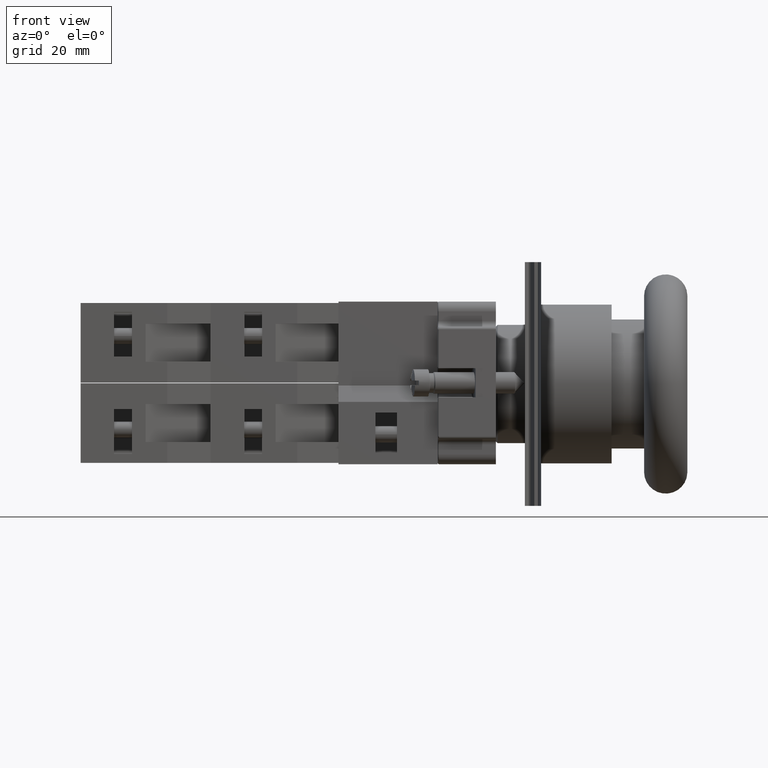
[diagram: clean part render]
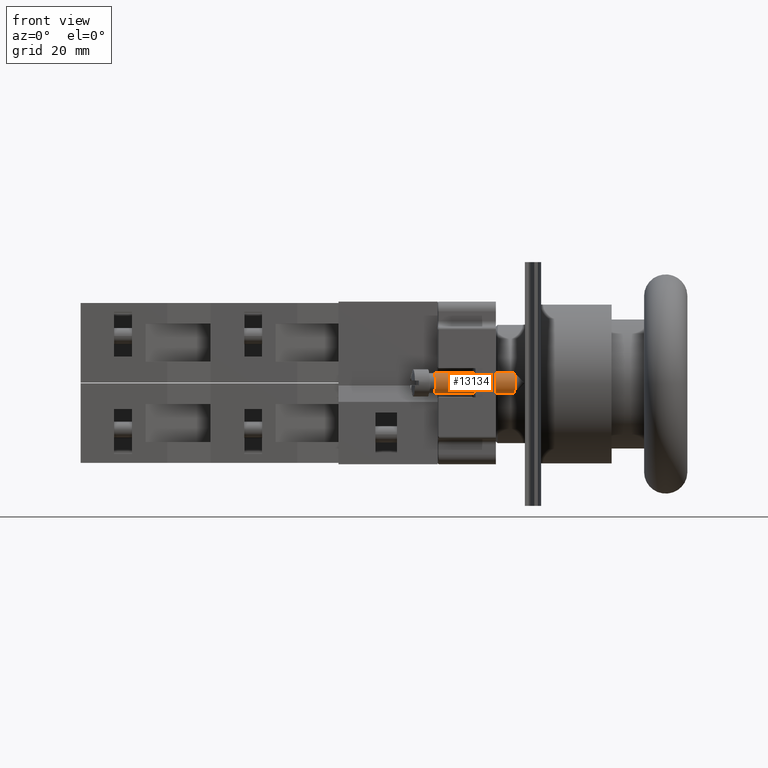
[diagram: same view with one face highlighted and labeled with its STEP entity id]
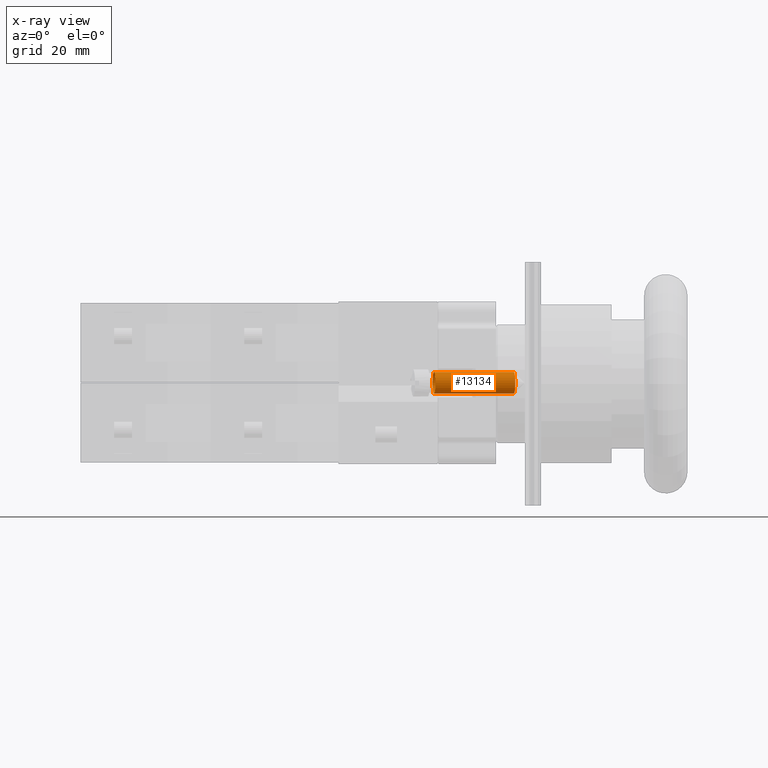
[diagram: x-ray of the same camera — body ghosted, the highlighted face saturated]
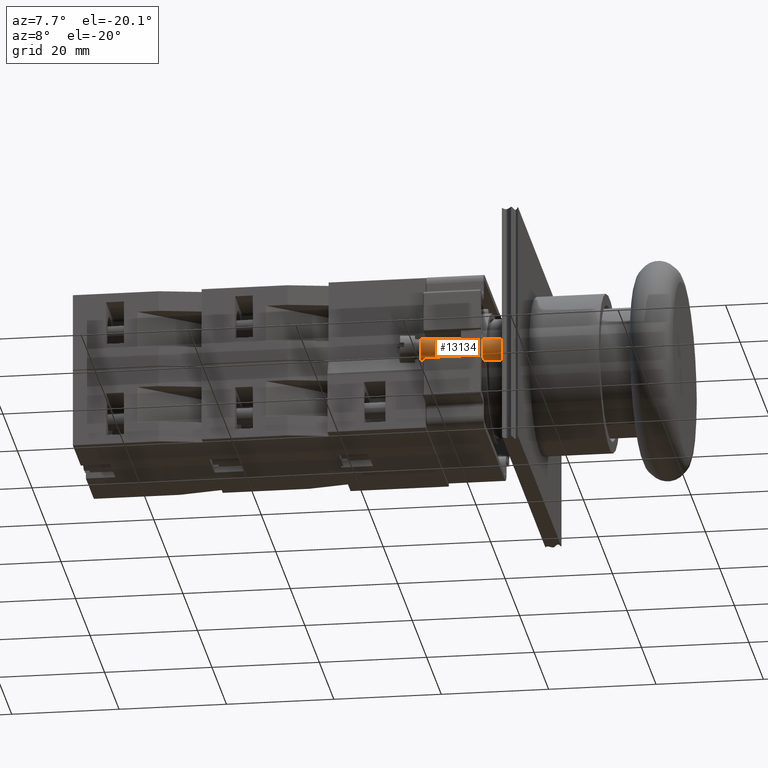
[diagram: same view with one face highlighted and labeled with its STEP entity id]
A machine part, front view. The second image highlights one B-rep face of the part: STEP entity #13134.
The next image is the same camera in x-ray: the body ghosted, the highlighted face saturated — about 0% of this face is hidden behind the body in this view.
A second angle (auxiliary view) of the same face is appended — the face is thin or edge-on in the first view.
In plain terms, the highlighted cylindrical surface (bore or boss wall) has radius 2 mm, axis along (0.9914, 0.1305, 0).
Its self-contained STEP definition (entity closure, byte-faithful):
#13103=CARTESIAN_POINT('',(-1.999999999999998,0.0,-1.119999999999999));
#13104=VERTEX_POINT('',#13103);
#13105=CARTESIAN_POINT('',(0.0,0.0,-1.119999999999999));
#13106=DIRECTION('',(0.0,0.0,-1.0));
#13107=DIRECTION('',(-1.0,0.0,0.0));
#13108=AXIS2_PLACEMENT_3D('',#13105,#13106,#13107);
#13109=CIRCLE('',#13108,1.999999999999998);
#13110=EDGE_CURVE('',#13104,#13104,#13109,.T.);
#13115=CARTESIAN_POINT('',(0.0,0.0,-8.559999999999999));
#13116=DIRECTION('',(0.0,0.0,-1.0));
#13117=DIRECTION('',(-1.0,0.0,0.0));
#13118=AXIS2_PLACEMENT_3D('',#13115,#13116,#13117);
#13119=CYLINDRICAL_SURFACE('',#13118,1.999999999999999);
#13120=CARTESIAN_POINT('',(-2.000000000000000,0.0,-15.999999999999998));
#13121=VERTEX_POINT('',#13120);
#13122=CARTESIAN_POINT('',(0.0,0.0,-15.999999999999998));
#13123=DIRECTION('',(0.0,0.0,-1.0));
#13124=DIRECTION('',(-1.0,0.0,0.0));
#13125=AXIS2_PLACEMENT_3D('',#13122,#13123,#13124);
#13126=CIRCLE('',#13125,2.000000000000000);
#13127=EDGE_CURVE('',#13121,#13121,#13126,.T.);
#13128=ORIENTED_EDGE('',*,*,#13127,.F.);
#13129=EDGE_LOOP('',(#13128));
#13130=FACE_OUTER_BOUND('',#13129,.T.);
#13131=ORIENTED_EDGE('',*,*,#13110,.T.);
#13132=EDGE_LOOP('',(#13131));
#13133=FACE_BOUND('',#13132,.T.);
#13134=ADVANCED_FACE('',(#13130,#13133),#13119,.T.);